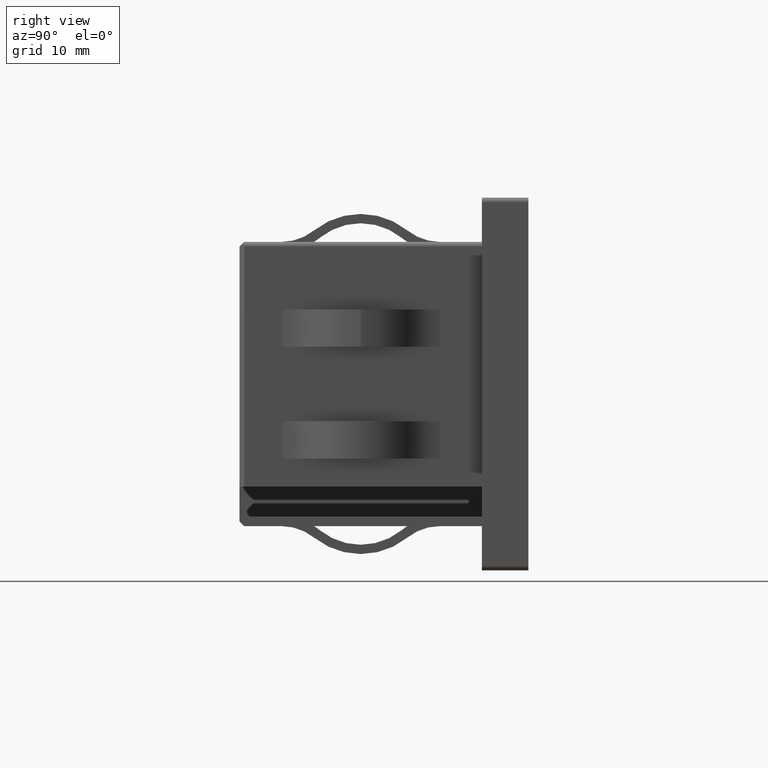
[diagram: clean part render]
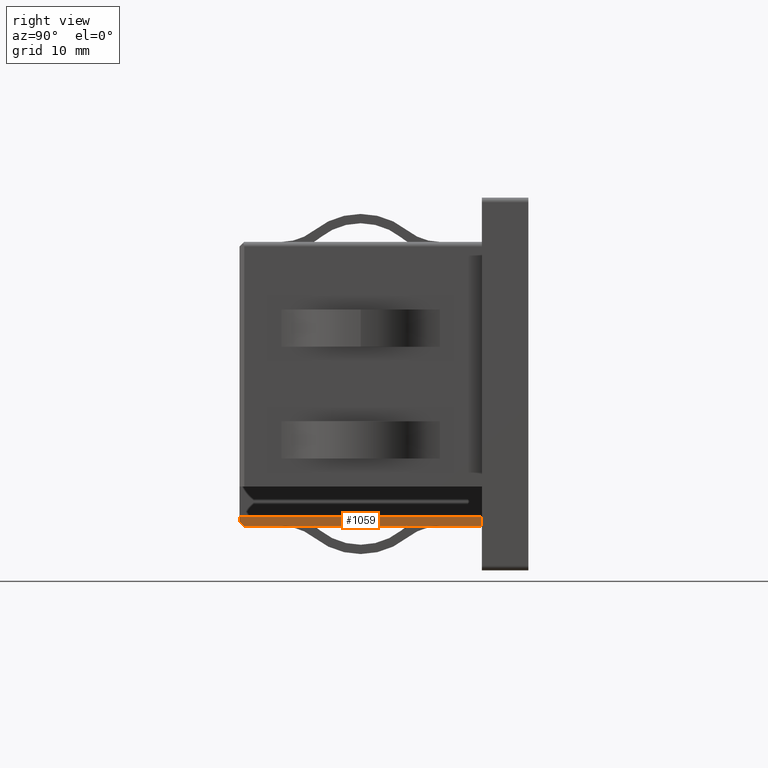
[diagram: same view with one face highlighted and labeled with its STEP entity id]
A machine part, right view. The second image highlights one B-rep face of the part: STEP entity #1059.
In plain terms, the highlighted planar face has unit normal (-1, 0, -0).
Its self-contained STEP definition (entity closure, byte-faithful):
#169 = ORIENTED_EDGE ( 'NONE', *, *, #12284, .T. ) ;
#392 = LINE ( 'NONE', #18073, #4762 ) ;
#590 = DIRECTION ( 'NONE',  ( 0.0000000000000000000, 0.7071067811865541200, -0.7071067811865409100 ) ) ;
#1059 = ADVANCED_FACE ( 'NONE', ( #4882 ), #17154, .F. ) ;
#1137 = CARTESIAN_POINT ( 'NONE',  ( 21.00000000000000400, -26.00000000000000000, -14.24999999999999800 ) ) ;
#1247 = CARTESIAN_POINT ( 'NONE',  ( 21.00000000000000400, 0.0000000000000000000, -14.24999999999999800 ) ) ;
#1351 = LINE ( 'NONE', #16418, #14099 ) ;
#2540 = DIRECTION ( 'NONE',  ( -0.0000000000000000000, -0.0000000000000000000, 1.000000000000000000 ) ) ;
#2751 = VERTEX_POINT ( 'NONE', #3212 ) ;
#3212 = CARTESIAN_POINT ( 'NONE',  ( 21.00000000000000400, -25.50000000000000000, -15.24999999999999800 ) ) ;
#3512 = DIRECTION ( 'NONE',  ( -0.0000000000000000000, 1.000000000000000000, -0.0000000000000000000 ) ) ;
#3751 = ORIENTED_EDGE ( 'NONE', *, *, #8613, .T. ) ;
#4358 = CARTESIAN_POINT ( 'NONE',  ( 21.00000000000000400, -26.00000000000000000, -15.24999999999999800 ) ) ;
#4762 = VECTOR ( 'NONE', #2540, 1000.000000000000000 ) ;
#4882 = FACE_OUTER_BOUND ( 'NONE', #16210, .T. ) ;
#5048 = VERTEX_POINT ( 'NONE', #5735 ) ;
#5462 = EDGE_CURVE ( 'NONE', #2751, #13321, #15732, .T. ) ;
#5735 = CARTESIAN_POINT ( 'NONE',  ( 21.00000000000000400, -26.00000000000000000, -14.75000000000000500 ) ) ;
#7591 = EDGE_CURVE ( 'NONE', #14172, #8120, #1351, .T. ) ;
#7732 = DIRECTION ( 'NONE',  ( -0.0000000000000000000, 0.0000000000000000000, 1.000000000000000000 ) ) ;
#8120 = VERTEX_POINT ( 'NONE', #1247 ) ;
#8607 = LINE ( 'NONE', #9938, #15063 ) ;
#8613 = EDGE_CURVE ( 'NONE', #13321, #8120, #392, .T. ) ;
#9819 = DIRECTION ( 'NONE',  ( -0.0000000000000000000, -0.0000000000000000000, 1.000000000000000000 ) ) ;
#9938 = CARTESIAN_POINT ( 'NONE',  ( 21.00000000000000400, -26.00000000000000000, -14.24999999999999800 ) ) ;
#10620 = VECTOR ( 'NONE', #14231, 1000.000000000000000 ) ;
#11112 = EDGE_CURVE ( 'NONE', #5048, #14172, #8607, .T. ) ;
#11912 = LINE ( 'NONE', #13187, #12363 ) ;
#11939 = CARTESIAN_POINT ( 'NONE',  ( 21.00000000000000400, -26.00000000000000000, -14.24999999999999800 ) ) ;
#12116 = ORIENTED_EDGE ( 'NONE', *, *, #11112, .F. ) ;
#12284 = EDGE_CURVE ( 'NONE', #5048, #2751, #11912, .T. ) ;
#12363 = VECTOR ( 'NONE', #590, 1000.000000000000000 ) ;
#13187 = CARTESIAN_POINT ( 'NONE',  ( 21.00000000000000400, -26.00000000000000000, -14.75000000000000500 ) ) ;
#13321 = VERTEX_POINT ( 'NONE', #14447 ) ;
#13357 = DIRECTION ( 'NONE',  ( -1.000000000000000000, 0.0000000000000000000, -0.0000000000000000000 ) ) ;
#14099 = VECTOR ( 'NONE', #3512, 1000.000000000000000 ) ;
#14172 = VERTEX_POINT ( 'NONE', #1137 ) ;
#14231 = DIRECTION ( 'NONE',  ( -0.0000000000000000000, 1.000000000000000000, -0.0000000000000000000 ) ) ;
#14447 = CARTESIAN_POINT ( 'NONE',  ( 21.00000000000000400, 0.0000000000000000000, -15.24999999999999800 ) ) ;
#15063 = VECTOR ( 'NONE', #9819, 1000.000000000000000 ) ;
#15732 = LINE ( 'NONE', #4358, #10620 ) ;
#15892 = ORIENTED_EDGE ( 'NONE', *, *, #5462, .T. ) ;
#16210 = EDGE_LOOP ( 'NONE', ( #12116, #169, #15892, #3751, #16437 ) ) ;
#16361 = AXIS2_PLACEMENT_3D ( 'NONE', #11939, #13357, #7732 ) ;
#16418 = CARTESIAN_POINT ( 'NONE',  ( 21.00000000000000400, -26.00000000000000000, -14.24999999999999800 ) ) ;
#16437 = ORIENTED_EDGE ( 'NONE', *, *, #7591, .F. ) ;
#17154 = PLANE ( 'NONE',  #16361 ) ;
#18073 = CARTESIAN_POINT ( 'NONE',  ( 21.00000000000000400, 0.0000000000000000000, -14.24999999999999800 ) ) ;